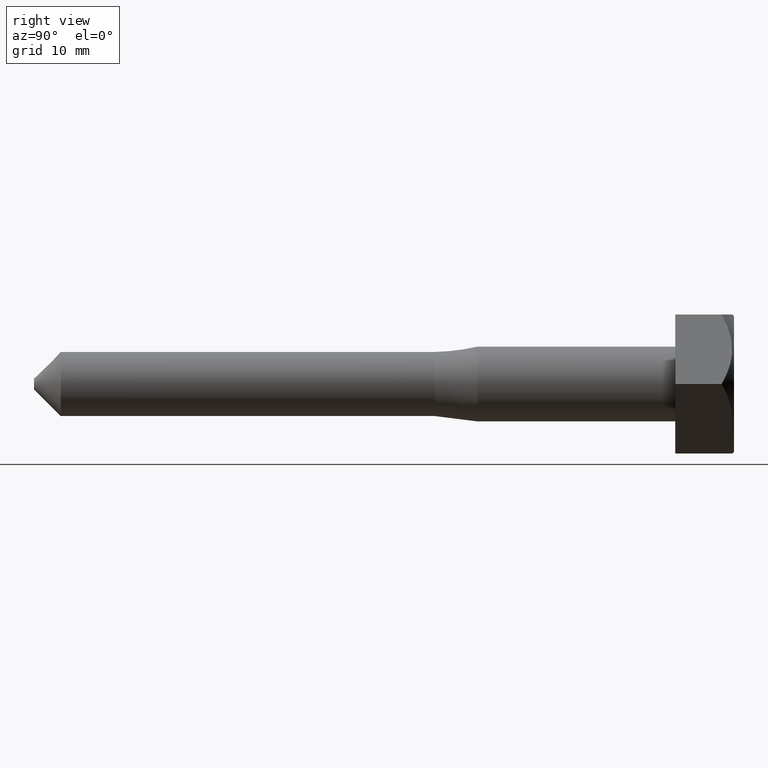
[diagram: clean part render]
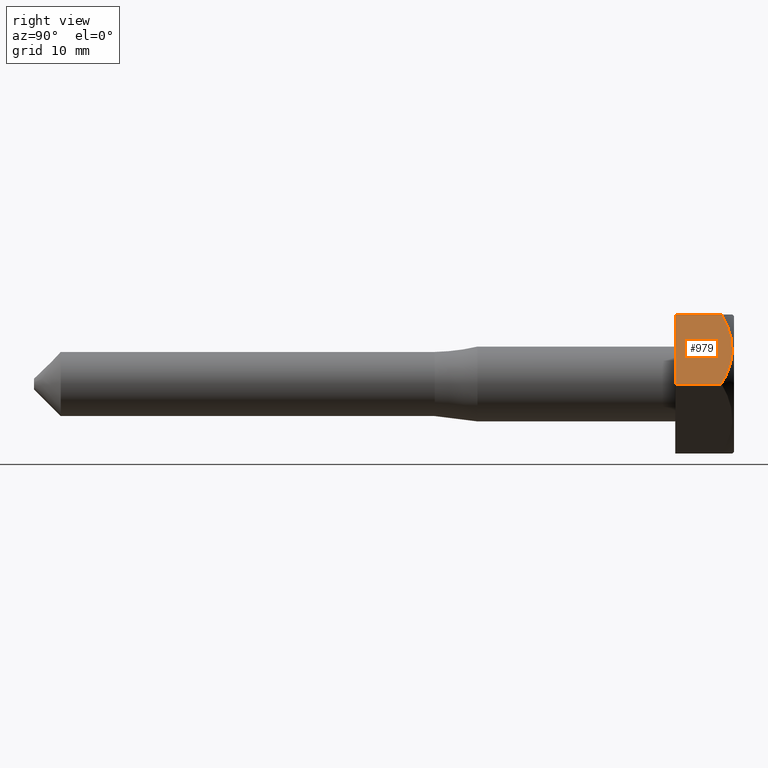
[diagram: same view with one face highlighted and labeled with its STEP entity id]
A machine part, right view. The second image highlights one B-rep face of the part: STEP entity #979.
In plain terms, the highlighted planar face has unit normal (-0.866, 0, -0.5).
Its self-contained STEP definition (entity closure, byte-faithful):
#900 = EDGE_CURVE ( 'NONE', #5948, #10868, #9643, .T. ) ;
#979 = ADVANCED_FACE ( 'NONE', ( #9246 ), #4985, .F. ) ;
#1118 = VECTOR ( 'NONE', #10081, 1000.000000000000000 ) ;
#1200 = DIRECTION ( 'NONE',  ( -0.8660254037844415900, 0.0000000000000000000, -0.4999999999999950600 ) ) ;
#1944 = CARTESIAN_POINT ( 'NONE',  ( 3.752776749732646500, 1.594446500534859600, 6.499999999999961800 ) ) ;
#3364 = CARTESIAN_POINT ( 'NONE',  ( 4.986451328140857300, 2.502165984431100800, 4.363212950190800600 ) ) ;
#3743 = DIRECTION ( 'NONE',  ( -0.4999999999999950000, 0.0000000000000000000, 0.8660254037844414800 ) ) ;
#3818 = LINE ( 'NONE', #5941, #10182 ) ;
#3906 = EDGE_CURVE ( 'NONE', #11433, #10868, #12519, .T. ) ;
#4385 = CARTESIAN_POINT ( 'NONE',  ( 7.212339713733379100, 1.887660286266623400, 0.5078611743670331500 ) ) ;
#4985 = PLANE ( 'NONE',  #8655 ) ;
#5941 = CARTESIAN_POINT ( 'NONE',  ( 3.752776749732646100, 2.750000000000000000, 6.499999999999961800 ) ) ;
#5948 = VERTEX_POINT ( 'NONE', #10741 ) ;
#6080 = CARTESIAN_POINT ( 'NONE',  ( 6.288698359775843900, 2.475181280895866600, 2.107654927393215200 ) ) ;
#6132 = ORIENTED_EDGE ( 'NONE', *, *, #13790, .T. ) ;
#6384 = VERTEX_POINT ( 'NONE', #1944 ) ;
#6911 = CARTESIAN_POINT ( 'NONE',  ( 3.752776749732646100, -2.750000000000000000, 6.499999999999961800 ) ) ;
#6959 = DIRECTION ( 'NONE',  ( 0.4999999999999950000, 0.0000000000000000000, -0.8660254037844415900 ) ) ;
#7119 = CARTESIAN_POINT ( 'NONE',  ( 6.446683854276855600, 2.404118058024085100, 1.834016024058565900 ) ) ;
#7284 = CARTESIAN_POINT ( 'NONE',  ( 3.752776749732646100, -2.750000000000000000, 6.499999999999961800 ) ) ;
#7435 = CARTESIAN_POINT ( 'NONE',  ( 7.505553499465141200, -2.750000000000000000, 0.0000000000000000000 ) ) ;
#8349 = CARTESIAN_POINT ( 'NONE',  ( 5.966047649501783600, 2.572960391561853300, 2.666502350686080500 ) ) ;
#8485 = DIRECTION ( 'NONE',  ( -0.0000000000000000000, -1.000000000000000000, -0.0000000000000000000 ) ) ;
#8622 = B_SPLINE_CURVE_WITH_KNOTS ( 'NONE', 3,
 ( #10643, #4385, #14797, #7119, #6080, #8349, #16192, #9687, #3364, #11138, #15014, #14957 ),
 .UNSPECIFIED., .F., .F.,
 ( 4, 2, 2, 2, 2, 4 ),
 ( 2.544317247018346500E-007, 0.001938488494164342000, 0.002907605525384162600, 0.003876722556603982900, 0.005814956619043624100, 0.007753190681483265700 ),
 .UNSPECIFIED. ) ;
#8655 = AXIS2_PLACEMENT_3D ( 'NONE', #15073, #1200, #3743 ) ;
#9246 = FACE_OUTER_BOUND ( 'NONE', #14017, .T. ) ;
#9643 = LINE ( 'NONE', #15232, #1118 ) ;
#9687 = CARTESIAN_POINT ( 'NONE',  ( 5.308465290586268800, 2.601377983576999200, 3.805468406488757200 ) ) ;
#10081 = DIRECTION ( 'NONE',  ( -0.0000000000000000000, -1.000000000000000000, -0.0000000000000000000 ) ) ;
#10182 = VECTOR ( 'NONE', #8485, 1000.000000000000000 ) ;
#10274 = ORIENTED_EDGE ( 'NONE', *, *, #3906, .T. ) ;
#10379 = EDGE_CURVE ( 'NONE', #5948, #6384, #8622, .T. ) ;
#10643 = CARTESIAN_POINT ( 'NONE',  ( 7.505553499465141200, 1.594446500534859600, 1.634709144449512600E-016 ) ) ;
#10741 = CARTESIAN_POINT ( 'NONE',  ( 7.505553499465141200, 1.594446500534859600, 1.634709144449512600E-016 ) ) ;
#10868 = VERTEX_POINT ( 'NONE', #7435 ) ;
#10946 = ORIENTED_EDGE ( 'NONE', *, *, #900, .F. ) ;
#11138 = CARTESIAN_POINT ( 'NONE',  ( 4.351400762081536500, 2.142283660219706800, 5.463152795980931000 ) ) ;
#11433 = VERTEX_POINT ( 'NONE', #7284 ) ;
#12519 = LINE ( 'NONE', #6911, #15339 ) ;
#13216 = ORIENTED_EDGE ( 'NONE', *, *, #10379, .T. ) ;
#13790 = EDGE_CURVE ( 'NONE', #6384, #11433, #3818, .T. ) ;
#14017 = EDGE_LOOP ( 'NONE', ( #10946, #13216, #6132, #10274 ) ) ;
#14797 = CARTESIAN_POINT ( 'NONE',  ( 6.912512096509147800, 2.136964185732475900, 1.027177840911721400 ) ) ;
#14957 = CARTESIAN_POINT ( 'NONE',  ( 3.752776749732646500, 1.594446500534859600, 6.499999999999961800 ) ) ;
#15014 = CARTESIAN_POINT ( 'NONE',  ( 4.047717248902251300, 1.889386999704601600, 5.989148070228473800 ) ) ;
#15073 = CARTESIAN_POINT ( 'NONE',  ( 3.752776749732646100, 2.750000000000000000, 6.499999999999961800 ) ) ;
#15232 = CARTESIAN_POINT ( 'NONE',  ( 7.505553499465141200, 2.750000000000000000, 0.0000000000000000000 ) ) ;
#15339 = VECTOR ( 'NONE', #6959, 1000.000000000000000 ) ;
#16192 = CARTESIAN_POINT ( 'NONE',  ( 5.799876921243766000, 2.599288983918465900, 2.954318494759693900 ) ) ;